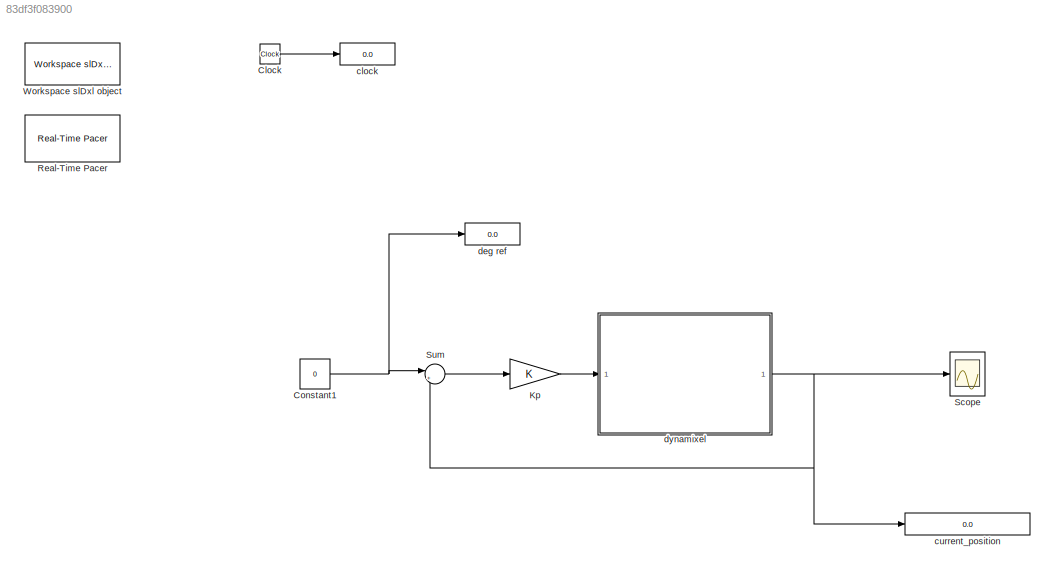
MODEL slx_83df3f083900
KIND model
CONFIG AbsTol = auto
CONFIG EnableMultiTasking = off
CONFIG FixedStep = Ts
CONFIG MaxStep = auto
CONFIG MinStep = auto
CONFIG RelTol = 1e-3
CONFIG SampleTimeConstraint = Unconstrained
CONFIG Solver = FixedStepAuto
CONFIG SolverName = FixedStepAuto
CONFIG StartTime = 0.0
CONFIG StopTime = inf
BLOCK [Clock] Clock
BLOCK [Constant] Constant1
  Value = 0
BLOCK [Gain] Kp
  OutDataTypeStr = Inherit: Inherit via internal rule
  ParamDataTypeStr = Inherit: Inherit via internal rule
  SaturateOnIntegerOverflow = off
BLOCK [Reference] Real-Time Pacer  REF=slDxl_lib_old/Real-Time Pacer
  Commented = on
  Ports = []
  SourceBlock = slDxl_lib_old/Real-Time Pacer
  SourceType = RealTime_Pacer
BLOCK [Scope] Scope
  Floating = off
  NumInputPorts = 1
  Ports = [1]
  ScopeSpecificationString = Simulink.scopes.TimeScopeBlockCfg('CurrentConfiguration', extmgr.ConfigurationSet(extmgr.Configuration('Core','General UI',true,'FigureColor',[0.156862745098039 0.156862745098039 0.156862745098039]),extmgr.Configuration('Core','Source UI',true),extmgr.Configuration('Sources','WiredSimulink',true,'DataLoggingSaveFormat','StructureWithTime','DataLoggingDecimation','1','DataLoggingDecimateData',true)...<+2754ch>
BLOCK [Sum] Sum
  IconShape = round
  InputSameDT = off
  Inputs = |+-
  OutDataTypeStr = Inherit: Inherit via internal rule
  Ports = [2, 1]
  SaturateOnIntegerOverflow = off
BLOCK [Reference] Workspace slDxl object  REF=slDxl_lib_old/Workspace slDxl object
  Ports = []
  SourceBlock = slDxl_lib_old/Workspace slDxl object
  SourceType = slDxl Setup
BLOCK [Display] clock
  Decimation = 1
  Format = long
  Ports = [1]
BLOCK [Display] current_position
  Decimation = 5
  Format = long
  Ports = [1]
BLOCK [Display] deg ref
  Decimation = 1
  Format = long
  Ports = [1]
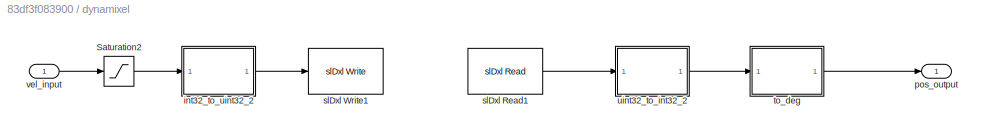
BLOCK [SubSystem] dynamixel
  Ports = [1, 1]
  RequestExecContextInheritance = off
BLOCK [Saturate] dynamixel/Saturation2
  InputPortMap = u0
  LowerLimit = -256
  Ports = [1, 1]
  UpperLimit = 256
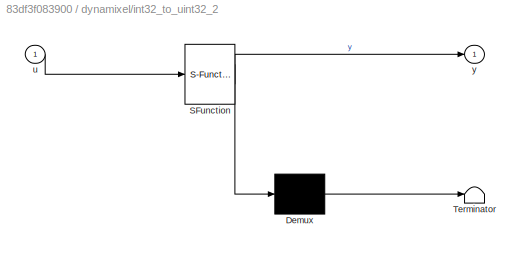
BLOCK [SubSystem] dynamixel/int32_to_uint32_2
  ErrorFcn = Stateflow.Translate.translate
  PermitHierarchicalResolution = ExplicitOnly
  Ports = [1, 1]
  RequestExecContextInheritance = off
  SFBlockType = MATLAB Function
  TreatAsAtomicUnit = on
BLOCK [Demux] dynamixel/int32_to_uint32_2/ Demux 
  Outputs = 1
  Ports = [1, 1]
BLOCK [S-Function] dynamixel/int32_to_uint32_2/ SFunction 
  EnableBusSupport = on
  FunctionName = sf_sfun
  PortCounts = [1 2]
  Ports = [1, 2]
  SFcnIsStateOwnerBlock = off
  SFunctionDeploymentMode = off
  Tag = Stateflow S-Function simulation_one_motor 4
BLOCK [Terminator] dynamixel/int32_to_uint32_2/ Terminator 
BLOCK [Inport] dynamixel/int32_to_uint32_2/u
  IconDisplay = Port number
BLOCK [Outport] dynamixel/int32_to_uint32_2/y
  IconDisplay = Port number
BLOCK [Outport] dynamixel/pos_output
  IconDisplay = Port number
BLOCK [Reference] dynamixel/slDxl Read1  REF=slDxl_lib_old/slDxl Read
  Ports = [0, 1]
  SourceBlock = slDxl_lib_old/slDxl Read
BLOCK [Reference] dynamixel/slDxl Write1  REF=slDxl_lib_old/slDxl Write
  Ports = [1]
  SourceBlock = slDxl_lib_old/slDxl Write
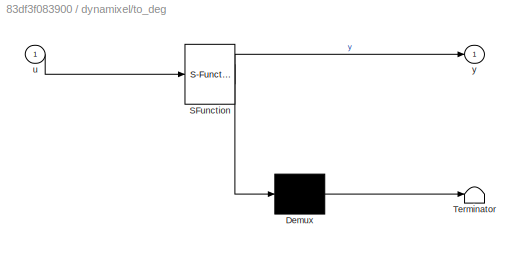
BLOCK [SubSystem] dynamixel/to_deg
  ErrorFcn = Stateflow.Translate.translate
  PermitHierarchicalResolution = ExplicitOnly
  Ports = [1, 1]
  RequestExecContextInheritance = off
  SFBlockType = MATLAB Function
  TreatAsAtomicUnit = on
BLOCK [Demux] dynamixel/to_deg/ Demux 
  Outputs = 1
  Ports = [1, 1]
BLOCK [S-Function] dynamixel/to_deg/ SFunction 
  EnableBusSupport = on
  FunctionName = sf_sfun
  PortCounts = [1 2]
  Ports = [1, 2]
  SFcnIsStateOwnerBlock = off
  SFunctionDeploymentMode = off
  Tag = Stateflow S-Function simulation_one_motor 3
BLOCK [Terminator] dynamixel/to_deg/ Terminator 
BLOCK [Inport] dynamixel/to_deg/u
  IconDisplay = Port number
BLOCK [Outport] dynamixel/to_deg/y
  IconDisplay = Port number
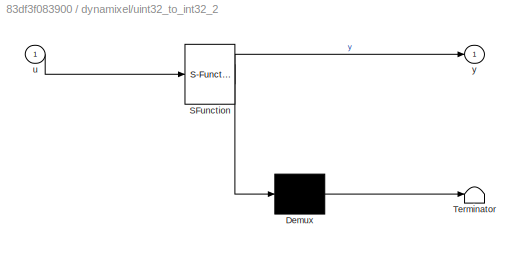
BLOCK [SubSystem] dynamixel/uint32_to_int32_2
  ErrorFcn = Stateflow.Translate.translate
  PermitHierarchicalResolution = ExplicitOnly
  Ports = [1, 1]
  RequestExecContextInheritance = off
  SFBlockType = MATLAB Function
  TreatAsAtomicUnit = on
BLOCK [Demux] dynamixel/uint32_to_int32_2/ Demux 
  Outputs = 1
  Ports = [1, 1]
BLOCK [S-Function] dynamixel/uint32_to_int32_2/ SFunction 
  EnableBusSupport = on
  FunctionName = sf_sfun
  PortCounts = [1 2]
  Ports = [1, 2]
  SFcnIsStateOwnerBlock = off
  SFunctionDeploymentMode = off
  Tag = Stateflow S-Function simulation_one_motor 1
BLOCK [Terminator] dynamixel/uint32_to_int32_2/ Terminator 
BLOCK [Inport] dynamixel/uint32_to_int32_2/u
  IconDisplay = Port number
BLOCK [Outport] dynamixel/uint32_to_int32_2/y
  IconDisplay = Port number
BLOCK [Inport] dynamixel/vel_input
  IconDisplay = Port number
LINE Clock:1 -> clock:1
NET Constant1:1 -> Sum:1, deg ref:1
LINE Kp:1 -> dynamixel:1
LINE Sum:1 -> Kp:1
LINE dynamixel/Saturation2:1 -> dynamixel/int32_to_uint32_2:1
LINE dynamixel/int32_to_uint32_2:1 -> dynamixel/slDxl Write1:1
LINE dynamixel/slDxl Read1:1 -> dynamixel/uint32_to_int32_2:1
LINE dynamixel/to_deg:1 -> dynamixel/pos_output:1
LINE dynamixel/uint32_to_int32_2:1 -> dynamixel/to_deg:1
LINE dynamixel/vel_input:1 -> dynamixel/Saturation2:1
NET dynamixel:1 -> Scope:1, Sum:2, current_position:1
note: NET lines group one-source signal fan-out (src -> all destinations, sorted); 1:1 wires keep LINE
CHART dynamixel/uint32_to_int32_2 states=1 transitions=1
  STATE_LABEL 'eML_blk_kernel()'
  STATE_LABEL "SCRIPT:\nfunction y = fcn(u)\n    temp = typecast(uint32(u), 'int32');\n    y = double(temp(1));\nend"
CHART dynamixel/to_deg states=1 transitions=1
  STATE_LABEL 'eML_blk_kernel()'
  STATE_LABEL 'SCRIPT:\nfunction y = fcn(u)\n    y = (u / 4095.0) * 360.0;\nend'
CHART dynamixel/int32_to_uint32_2 states=1 transitions=1
  STATE_LABEL 'eML_blk_kernel()'
  STATE_LABEL "SCRIPT:\nfunction y = fcn(u)\n    temp = typecast(int32(u), 'uint32');\n    y = temp(1);\nend"
